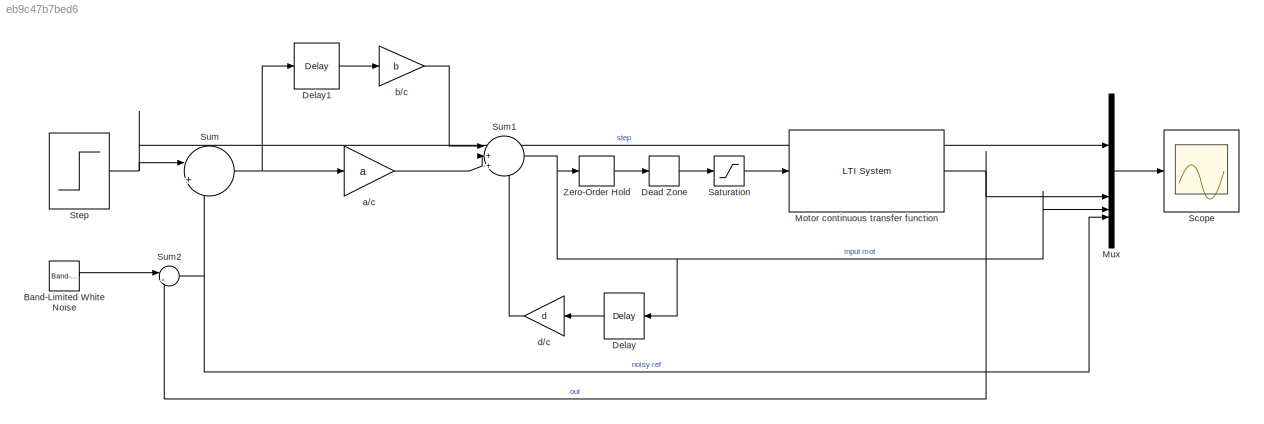
MODEL slx_eb9c47b7bed6
KIND model
CONFIG AbsTol = auto
CONFIG EnableMultiTasking = off
CONFIG FixedStep = auto
CONFIG MaxStep = auto
CONFIG MinStep = auto
CONFIG RelTol = 1e-3
CONFIG SampleTimeConstraint = Unconstrained
CONFIG SolverName = VariableStepAuto
CONFIG StartTime = 0.0
CONFIG StopTime = 10.0
BLOCK [Reference] Band-Limited White Noise  REF=simulink/Sources/Band-Limited
White Noise
  SourceBlock = simulink/Sources/Band-Limited\nWhite Noise
  SourceType = Band-Limited White Noise.
BLOCK [DeadZone] Dead Zone
  LowerValue = -1.75
  UpperValue = 1.7
BLOCK [Delay] Delay
  DelayLength = 1
  InputPortMap = u0
  InputProcessing = Columns as channels (frame based)
  NameLocation = top
BLOCK [Delay] Delay1
  DelayLength = 1
  InputPortMap = u0
  InputProcessing = Columns as channels (frame based)
BLOCK [Reference] Motor continuous transfer function  REF=cstblocks/LTI System
  SourceBlock = cstblocks/LTI System
  SourceType = LTI Block
BLOCK [Mux] Mux
  DisplayOption = bar
BLOCK [Saturate] Saturation
  LowerLimit = -8.42
  UpperLimit = 8.30
BLOCK [Scope] Scope
  Floating = off
  NumInputPorts = 1
  ScopeSpecificationString = Simulink.scopes.TimeScopeBlockCfg('CurrentConfiguration', extmgr.ConfigurationSet(extmgr.Configuration('Core','General UI',true),extmgr.Configuration('Core','Source UI',true),extmgr.Configuration('Sources','WiredSimulink',true),extmgr.Configuration('Visuals','Time Domain',true,'SerializedDisplays',{struct('MinYLimReal','-6.43436','MaxYLimReal','6.35778','YLabelReal','','MinYLimMag','0.00000','MaxY...<+1605ch>
BLOCK [Step] Step
  SampleTime = 0
BLOCK [Sum] Sum
  Inputs = |+-
BLOCK [Sum] Sum1
  Inputs = |++-
BLOCK [Sum] Sum2
  Inputs = |++
BLOCK [ZeroOrderHold] Zero-Order Hold
  SampleTime = 0.01
BLOCK [Gain] a//c
  Gain = a
BLOCK [Gain] b//c
  Gain = b
BLOCK [Gain] d//c
  Gain = d
  NameLocation = top
LINE Band-Limited White Noise:1 -> Sum2:1
LINE Dead Zone:1 -> Saturation:1
LINE Delay1:1 -> b//c:1
LINE Delay:1 -> d//c:1
NET Motor continuous transfer function:1 -> Mux:2, Sum2:2
LINE Mux:1 -> Scope:1
LINE Saturation:1 -> Motor continuous transfer function:1
NET Step:1 -> Mux:1, Sum:1
NET Sum1:1 -> Delay:1, Mux:3, Zero-Order Hold:1
NET Sum2:1 -> Mux:4, Sum:2
NET Sum:1 -> Delay1:1, a//c:1
LINE Zero-Order Hold:1 -> Dead Zone:1
LINE a//c:1 -> Sum1:2
LINE b//c:1 -> Sum1:1
LINE d//c:1 -> Sum1:3
note: NET lines group one-source signal fan-out (src -> all destinations, sorted); 1:1 wires keep LINE
